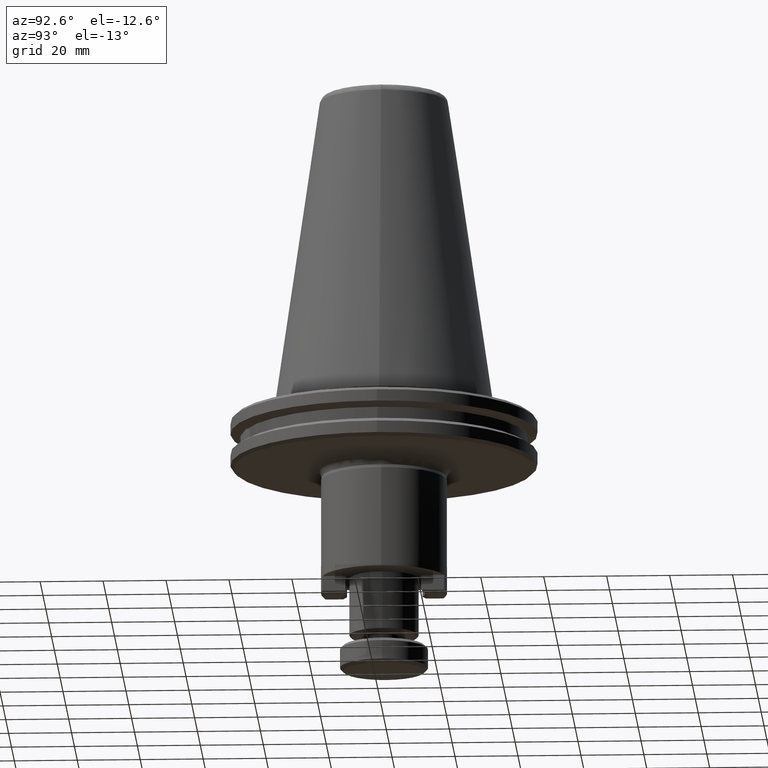
[diagram: clean part render]
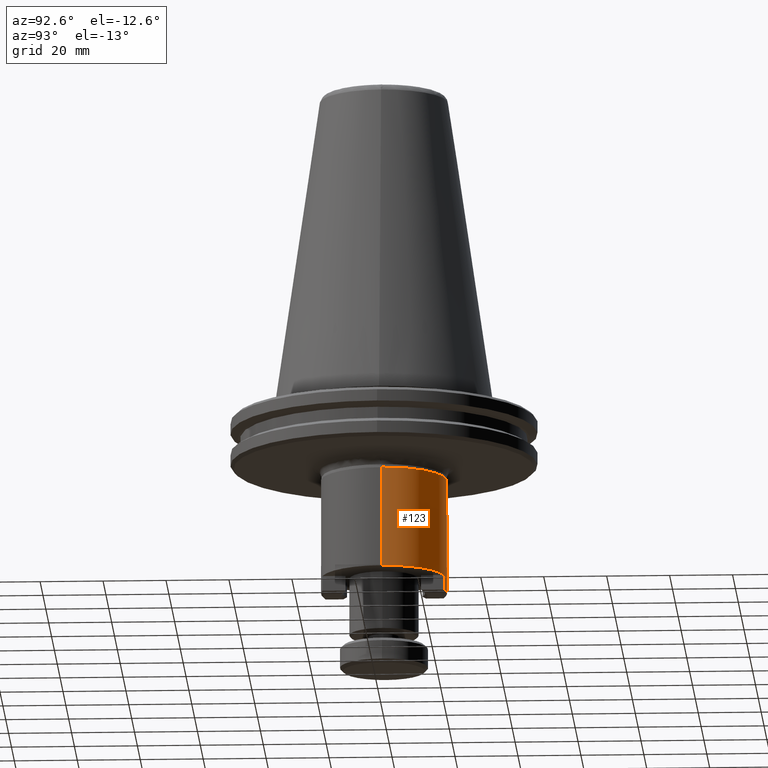
[diagram: same view with one face highlighted and labeled with its STEP entity id]
A machine part, auxiliary view. The second image highlights one B-rep face of the part: STEP entity #123.
In plain terms, the highlighted cylindrical surface (partial cylindrical patch) has radius 20 mm, axis along (0, 0, 1).
Its self-contained STEP definition (entity closure, byte-faithful):
#13 = CARTESIAN_POINT ( 'NONE',  ( 69.44000914255849500, 102.4230254990840100, 43.65142734608048900 ) ) ;
#21 = CARTESIAN_POINT ( 'NONE',  ( 84.44000914237197700, 121.7879422299326300, 38.85142735032442800 ) ) ;
#104 = AXIS2_PLACEMENT_3D ( 'NONE', #1396, #1382, #1374 ) ;
#123 = ADVANCED_FACE ( 'NONE', ( #521 ), #886, .T. ) ;
#170 = VERTEX_POINT ( 'NONE', #2219 ) ;
#205 = EDGE_CURVE ( 'NONE', #2492, #1455, #1527, .T. ) ;
#208 = VERTEX_POINT ( 'NONE', #1434 ) ;
#223 = EDGE_CURVE ( 'NONE', #1686, #2492, #312, .T. ) ;
#312 = CIRCLE ( 'NONE', #104, 20.00000000000000400 ) ;
#369 = ORIENTED_EDGE ( 'NONE', *, *, #805, .T. ) ;
#391 = EDGE_CURVE ( 'NONE', #170, #1351, #1961, .T. ) ;
#495 = VECTOR ( 'NONE', #2729, 1000.000000000000000 ) ;
#521 = FACE_OUTER_BOUND ( 'NONE', #1811, .T. ) ;
#564 = LINE ( 'NONE', #2741, #495 ) ;
#614 = DIRECTION ( 'NONE',  ( 0.0000000000000000000, 0.0000000000000000000, 1.000000000000000000 ) ) ;
#646 = CARTESIAN_POINT ( 'NONE',  ( 109.4400091425584900, 102.4230254990840100, 38.85142735088048500 ) ) ;
#683 = VERTEX_POINT ( 'NONE', #1408 ) ;
#771 = DIRECTION ( 'NONE',  ( 1.000000000000000000, 0.0000000000000000000, 0.0000000000000000000 ) ) ;
#775 = DIRECTION ( 'NONE',  ( 0.0000000000000000000, 0.0000000000000000000, 1.000000000000000000 ) ) ;
#780 = CARTESIAN_POINT ( 'NONE',  ( 89.44000914255849500, 102.4230254990840100, 38.85142735004009800 ) ) ;
#805 = EDGE_CURVE ( 'NONE', #1455, #2590, #1067, .T. ) ;
#835 = DIRECTION ( 'NONE',  ( 1.000000000000000000, 0.0000000000000000000, 0.0000000000000000000 ) ) ;
#843 = DIRECTION ( 'NONE',  ( 0.0000000000000000000, 0.0000000000000000000, 1.000000000000000000 ) ) ;
#848 = CARTESIAN_POINT ( 'NONE',  ( 89.44000914255849500, 102.4230254990840100, 43.65142734968048900 ) ) ;
#879 = ORIENTED_EDGE ( 'NONE', *, *, #2784, .T. ) ;
#886 = CYLINDRICAL_SURFACE ( 'NONE', #1858, 20.00000000000000400 ) ;
#1010 = CARTESIAN_POINT ( 'NONE',  ( 109.4400091425584900, 102.4230254990840100, 75.54976151069280400 ) ) ;
#1067 = CIRCLE ( 'NONE', #2088, 20.00000000000000400 ) ;
#1194 = DIRECTION ( 'NONE',  ( -1.000000000000000000, 0.0000000000000000000, 0.0000000000000000000 ) ) ;
#1211 = ORIENTED_EDGE ( 'NONE', *, *, #2375, .T. ) ;
#1237 = ORIENTED_EDGE ( 'NONE', *, *, #391, .T. ) ;
#1248 = CARTESIAN_POINT ( 'NONE',  ( 89.44000914255849500, 102.4230254990840100, 75.54976151069280400 ) ) ;
#1351 = VERTEX_POINT ( 'NONE', #21 ) ;
#1374 = DIRECTION ( 'NONE',  ( 1.000000000000000000, 0.0000000000000000000, 0.0000000000000000000 ) ) ;
#1382 = DIRECTION ( 'NONE',  ( 0.0000000000000000000, 0.0000000000000000000, 1.000000000000000000 ) ) ;
#1383 = DIRECTION ( 'NONE',  ( -0.0000000000000000000, -0.0000000000000000000, -1.000000000000000000 ) ) ;
#1386 = ORIENTED_EDGE ( 'NONE', *, *, #2425, .F. ) ;
#1396 = CARTESIAN_POINT ( 'NONE',  ( 89.44000914255849500, 102.4230254990840100, 43.65142734608048900 ) ) ;
#1408 = CARTESIAN_POINT ( 'NONE',  ( 94.44000914229050600, 121.7879422301903000, 43.65142734968048900 ) ) ;
#1411 = ORIENTED_EDGE ( 'NONE', *, *, #205, .T. ) ;
#1434 = CARTESIAN_POINT ( 'NONE',  ( 109.4400091425584900, 102.4230254990840100, 43.65142734968048900 ) ) ;
#1452 = VECTOR ( 'NONE', #1601, 1000.000000000000000 ) ;
#1455 = VERTEX_POINT ( 'NONE', #2183 ) ;
#1467 = DIRECTION ( 'NONE',  ( 0.0000000000000000000, 0.0000000000000000000, 1.000000000000000000 ) ) ;
#1480 = CARTESIAN_POINT ( 'NONE',  ( 69.44000914255849500, 102.4230254990840100, 38.85142735088048500 ) ) ;
#1482 = CARTESIAN_POINT ( 'NONE',  ( 84.44000914211751800, 121.7879422300072300, 38.85142735088048500 ) ) ;
#1527 = LINE ( 'NONE', #1480, #1452 ) ;
#1601 = DIRECTION ( 'NONE',  ( 0.0000000000000000000, 0.0000000000000000000, 1.000000000000000000 ) ) ;
#1664 = LINE ( 'NONE', #1482, #2289 ) ;
#1686 = VERTEX_POINT ( 'NONE', #1828 ) ;
#1811 = EDGE_LOOP ( 'NONE', ( #2128, #1411, #369, #1386, #1211, #2050, #1237, #879 ) ) ;
#1828 = CARTESIAN_POINT ( 'NONE',  ( 84.44000914233801300, 121.7879422300641700, 43.65142734968048900 ) ) ;
#1858 = AXIS2_PLACEMENT_3D ( 'NONE', #2209, #2189, #2096 ) ;
#1961 = CIRCLE ( 'NONE', #2482, 20.00000000000000400 ) ;
#2050 = ORIENTED_EDGE ( 'NONE', *, *, #2259, .T. ) ;
#2088 = AXIS2_PLACEMENT_3D ( 'NONE', #1248, #1383, #1194 ) ;
#2096 = DIRECTION ( 'NONE',  ( 1.000000000000000000, 0.0000000000000000000, 0.0000000000000000000 ) ) ;
#2128 = ORIENTED_EDGE ( 'NONE', *, *, #223, .T. ) ;
#2134 = AXIS2_PLACEMENT_3D ( 'NONE', #848, #843, #835 ) ;
#2143 = LINE ( 'NONE', #646, #2290 ) ;
#2183 = CARTESIAN_POINT ( 'NONE',  ( 69.44000914255849500, 102.4230254990840100, 75.54976151069280400 ) ) ;
#2189 = DIRECTION ( 'NONE',  ( 0.0000000000000000000, 0.0000000000000000000, 1.000000000000000000 ) ) ;
#2209 = CARTESIAN_POINT ( 'NONE',  ( 89.44000914255849500, 102.4230254990840100, 38.85142735088048500 ) ) ;
#2219 = CARTESIAN_POINT ( 'NONE',  ( 94.44000914209617300, 121.7879422303598300, 38.85142735040419400 ) ) ;
#2259 = EDGE_CURVE ( 'NONE', #683, #170, #564, .T. ) ;
#2289 = VECTOR ( 'NONE', #1467, 1000.000000000000000 ) ;
#2290 = VECTOR ( 'NONE', #614, 1000.000000000000000 ) ;
#2375 = EDGE_CURVE ( 'NONE', #208, #683, #2794, .T. ) ;
#2425 = EDGE_CURVE ( 'NONE', #208, #2590, #2143, .T. ) ;
#2482 = AXIS2_PLACEMENT_3D ( 'NONE', #780, #775, #771 ) ;
#2492 = VERTEX_POINT ( 'NONE', #13 ) ;
#2590 = VERTEX_POINT ( 'NONE', #1010 ) ;
#2729 = DIRECTION ( 'NONE',  ( -0.0000000000000000000, -0.0000000000000000000, -1.000000000000000000 ) ) ;
#2741 = CARTESIAN_POINT ( 'NONE',  ( 94.44000914238999700, 121.7879422301646000, 38.85142735088048500 ) ) ;
#2784 = EDGE_CURVE ( 'NONE', #1351, #1686, #1664, .T. ) ;
#2794 = CIRCLE ( 'NONE', #2134, 20.00000000000000400 ) ;